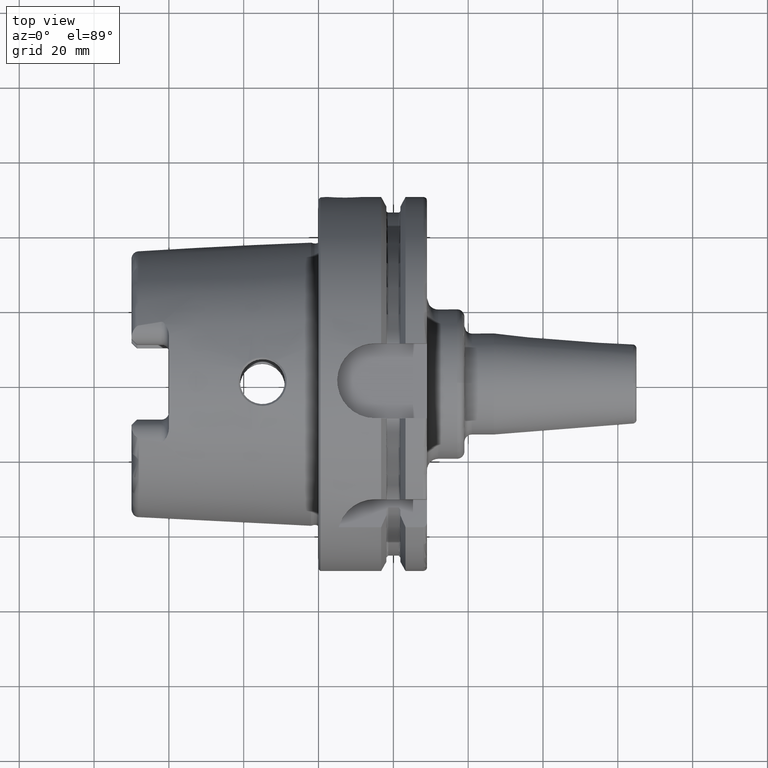
[diagram: clean part render]
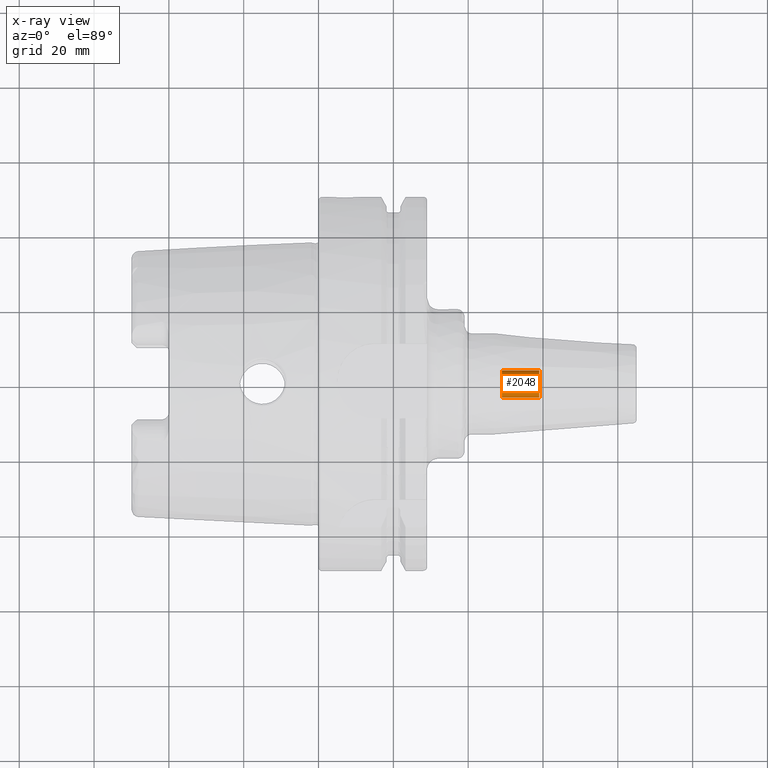
[diagram: x-ray — body ghosted, one internal face saturated and labeled with its STEP entity id]
A machine part, top view, then the same camera in x-ray: the body is ghosted and one INTERNAL B-rep face — a face not visible from any outside direction — is saturated and labeled: STEP entity #2048.
In plain terms, the highlighted cylindrical surface (bore or boss wall) has radius 3.6 mm, axis along (1, 0, 0).
Its self-contained STEP definition (entity closure, byte-faithful):
#182=CYLINDRICAL_SURFACE('',#2226,3.6);
#230=FACE_OUTER_BOUND('',#358,.T.);
#358=EDGE_LOOP('',(#1447,#1448,#1449,#1450));
#490=LINE('',#3207,#597);
#597=VECTOR('',#2569,3.6);
#717=CIRCLE('',#2227,3.6);
#718=CIRCLE('',#2228,3.6);
#864=VERTEX_POINT('',#3204);
#865=VERTEX_POINT('',#3206);
#1088=EDGE_CURVE('',#864,#864,#717,.T.);
#1089=EDGE_CURVE('',#864,#865,#490,.T.);
#1090=EDGE_CURVE('',#865,#865,#718,.T.);
#1447=ORIENTED_EDGE('',*,*,#1088,.T.);
#1448=ORIENTED_EDGE('',*,*,#1089,.T.);
#1449=ORIENTED_EDGE('',*,*,#1090,.F.);
#1450=ORIENTED_EDGE('',*,*,#1089,.F.);
#2048=ADVANCED_FACE('',(#230),#182,.F.);
#2226=AXIS2_PLACEMENT_3D('',#3203,#2565,#2566);
#2227=AXIS2_PLACEMENT_3D('',#3205,#2567,#2568);
#2228=AXIS2_PLACEMENT_3D('',#3208,#2570,#2571);
#2565=DIRECTION('center_axis',(1.,0.,0.));
#2566=DIRECTION('ref_axis',(0.,1.,0.));
#2567=DIRECTION('center_axis',(1.,0.,0.));
#2568=DIRECTION('ref_axis',(0.,0.,-1.));
#2569=DIRECTION('',(-1.,0.,0.));
#2570=DIRECTION('center_axis',(1.,0.,0.));
#2571=DIRECTION('ref_axis',(0.,0.,-1.));
#3203=CARTESIAN_POINT('Origin',(54.,0.,0.));
#3204=CARTESIAN_POINT('',(59.,-3.6,-4.40872847693047E-16));
#3205=CARTESIAN_POINT('Origin',(59.,0.,0.));
#3206=CARTESIAN_POINT('',(49.,-3.6,-4.40872847693047E-16));
#3207=CARTESIAN_POINT('',(54.,-3.6,-4.40872847693047E-16));
#3208=CARTESIAN_POINT('Origin',(49.,0.,0.));